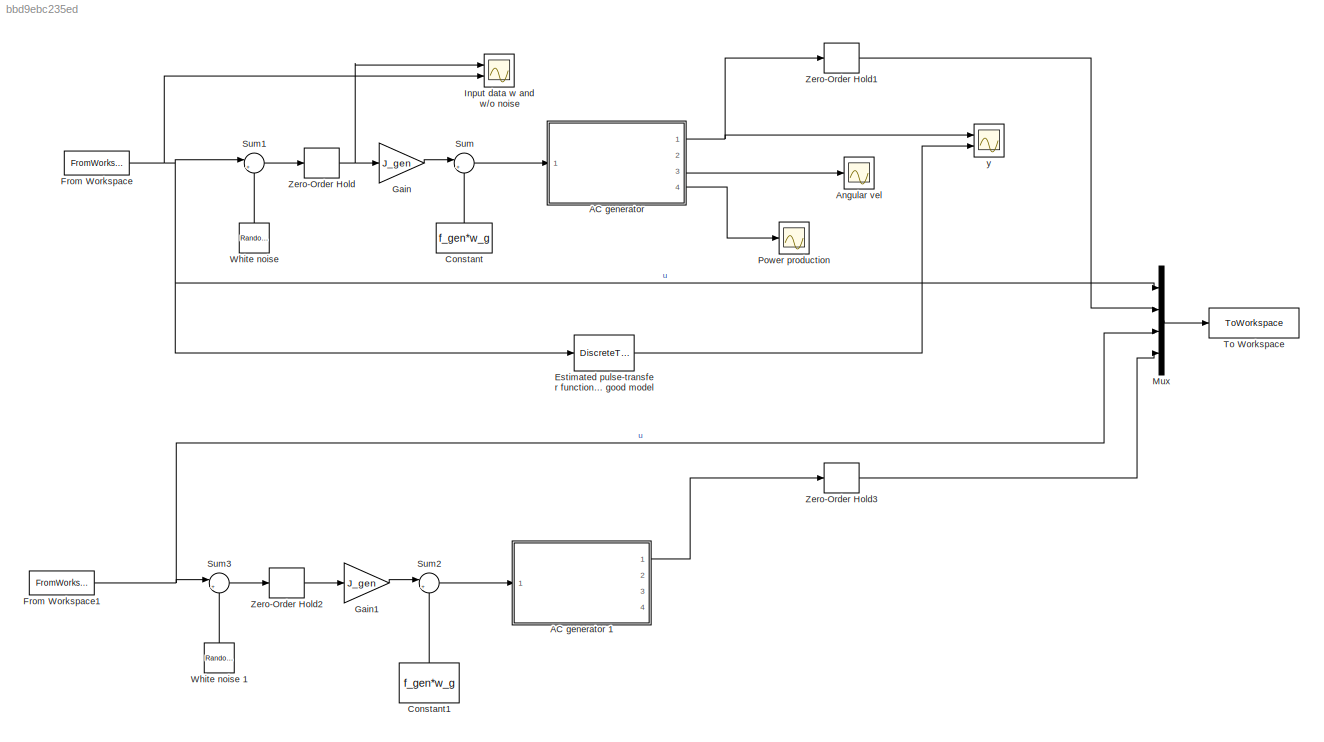
MODEL slx_bbd9ebc235ed
KIND model
CONFIG AbsTol = auto
CONFIG EnableMultiTasking = off
CONFIG FixedStep = auto
CONFIG MaxStep = 1e-3
CONFIG MinStep = auto
CONFIG RelTol = 1e-3
CONFIG SampleTimeConstraint = Unconstrained
CONFIG Solver = ode15s
CONFIG SolverName = ode15s
CONFIG StartTime = 0.0
CONFIG StopTime = 12
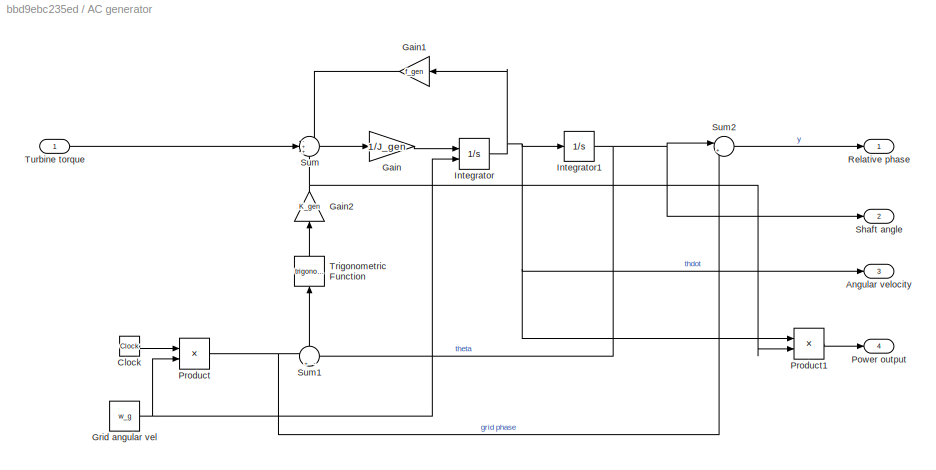
BLOCK [SubSystem] AC generator
  Ports = [1, 4]
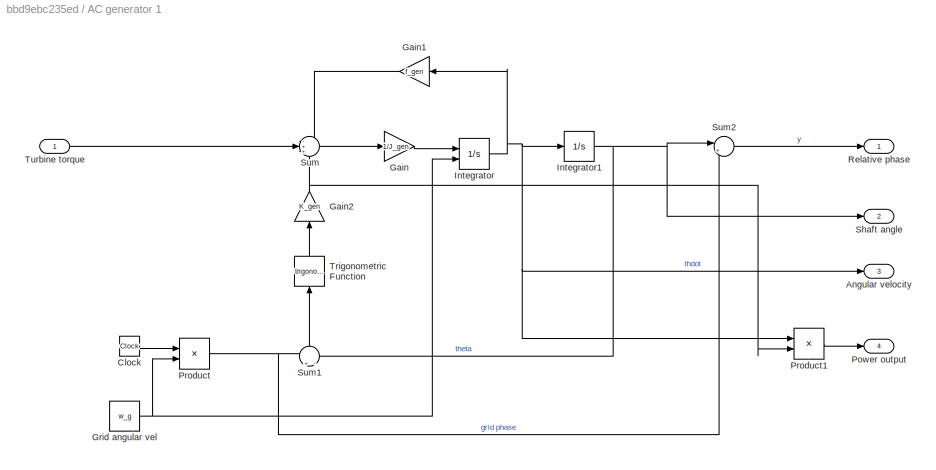
BLOCK [SubSystem] AC generator 1
  Ports = [1, 4]
BLOCK [Outport] AC generator 1/Angular velocity
  Port = 3
BLOCK [Clock] AC generator 1/Clock
BLOCK [Gain] AC generator 1/Gain
  Gain = 1/J_gen
BLOCK [Gain] AC generator 1/Gain1
  Gain = f_gen
BLOCK [Gain] AC generator 1/Gain2
  Gain = K_gen
BLOCK [Constant] AC generator 1/Grid angular vel
  Value = w_g
BLOCK [Integrator] AC generator 1/Integrator
  InitialConditionSource = external
  Ports = [2, 1]
BLOCK [Integrator] AC generator 1/Integrator1
  Ports = [1, 1]
BLOCK [Outport] AC generator 1/Power output
  Port = 4
BLOCK [Product] AC generator 1/Product
  Ports = [2, 1]
BLOCK [Product] AC generator 1/Product1
  Ports = [2, 1]
BLOCK [Outport] AC generator 1/Relative phase
BLOCK [Outport] AC generator 1/Shaft angle
  Port = 2
BLOCK [Sum] AC generator 1/Sum
  Inputs = -++
  Ports = [3, 1]
BLOCK [Sum] AC generator 1/Sum1
  Inputs = +|-
  Ports = [2, 1]
BLOCK [Sum] AC generator 1/Sum2
  Inputs = |+-
  Ports = [2, 1]
BLOCK [Trigonometry] AC generator 1/Trigonometric Function
  Ports = [1, 1]
BLOCK [Inport] AC generator 1/Turbine torque
BLOCK [Outport] AC generator/Angular velocity
  Port = 3
BLOCK [Clock] AC generator/Clock
BLOCK [Gain] AC generator/Gain
  Gain = 1/J_gen
BLOCK [Gain] AC generator/Gain1
  Gain = f_gen
BLOCK [Gain] AC generator/Gain2
  Gain = K_gen
BLOCK [Constant] AC generator/Grid angular vel
  Value = w_g
BLOCK [Integrator] AC generator/Integrator
  InitialConditionSource = external
  Ports = [2, 1]
BLOCK [Integrator] AC generator/Integrator1
  Ports = [1, 1]
BLOCK [Outport] AC generator/Power output
  Port = 4
BLOCK [Product] AC generator/Product
  Ports = [2, 1]
BLOCK [Product] AC generator/Product1
  Ports = [2, 1]
BLOCK [Outport] AC generator/Relative phase
BLOCK [Outport] AC generator/Shaft angle
  Port = 2
BLOCK [Sum] AC generator/Sum
  Inputs = -++
  Ports = [3, 1]
BLOCK [Sum] AC generator/Sum1
  Inputs = +|-
  Ports = [2, 1]
BLOCK [Sum] AC generator/Sum2
  Inputs = |+-
  Ports = [2, 1]
BLOCK [Trigonometry] AC generator/Trigonometric Function
  Ports = [1, 1]
BLOCK [Inport] AC generator/Turbine torque
BLOCK [Scope] Angular vel
  Floating = off
  NumInputPorts = 1
  Ports = [1]
  ScopeSpecificationString = Simulink.scopes.TimeScopeBlockCfg('CurrentConfiguration', extmgr.ConfigurationSet(extmgr.Configuration('Core','General UI',true),extmgr.Configuration('Core','Source UI',true),extmgr.Configuration('Sources','WiredSimulink',true,'DataLoggingVariableName','ScopeData1'),extmgr.Configuration('Visuals','Time Domain',true,'SerializedDisplays',{struct('MinYLimReal','224.79327','MaxYLimReal','605.82004','Y...<+1478ch>
BLOCK [Constant] Constant
  Value = f_gen*w_g
BLOCK [Constant] Constant1
  Value = f_gen*w_g
BLOCK [DiscreteTransferFcn] Estimated pulse-transfer function Uncomment when you have found a good model
  Commented = on
  Denominator = den{1}
  InputPortMap = u0
  Numerator = num{1}
  Ports = [1, 1]
  SampleTime = h
BLOCK [FromWorkspace] From Workspace
  SampleTime = h
  VariableName = input1
BLOCK [FromWorkspace] From Workspace1
  SampleTime = h
  VariableName = input1v
BLOCK [Gain] Gain
  Gain = J_gen
BLOCK [Gain] Gain1
  Gain = J_gen
BLOCK [Scope] Input data w and w//o noise
  Floating = off
  NumInputPorts = 2
  Ports = [2]
  ScopeSpecificationString = Simulink.scopes.TimeScopeBlockCfg('CurrentConfiguration', extmgr.ConfigurationSet(extmgr.Configuration('Core','General UI',true),extmgr.Configuration('Core','Source UI',true),extmgr.Configuration('Sources','WiredSimulink',true,'DataLoggingVariableName','ScopeData1'),extmgr.Configuration('Visuals','Time Domain',true,'SerializedDisplays',{struct('MinYLimReal','-3.08678','MaxYLimReal','3.41723','YLab...<+1472ch>
BLOCK [Mux] Mux
  DisplayOption = bar
  Ports = [4, 1]
BLOCK [Scope] Power production
  Floating = off
  NumInputPorts = 1
  Ports = [1]
  ScopeSpecificationString = Simulink.scopes.TimeScopeBlockCfg('CurrentConfiguration', extmgr.ConfigurationSet(extmgr.Configuration('Core','General UI',true),extmgr.Configuration('Core','Source UI',true),extmgr.Configuration('Sources','WiredSimulink',true,'DataLoggingVariableName','ScopeData2'),extmgr.Configuration('Visuals','Time Domain',true,'SerializedDisplays',{struct('MinYLimReal','-117411511.98523','MaxYLimReal','130457...<+1546ch>
BLOCK [Sum] Sum
  Inputs = |++
  Ports = [2, 1]
BLOCK [Sum] Sum1
  Inputs = |++
  Ports = [2, 1]
BLOCK [Sum] Sum2
  Inputs = |++
  Ports = [2, 1]
BLOCK [Sum] Sum3
  Inputs = |++
  Ports = [2, 1]
BLOCK [ToWorkspace] To Workspace
  FixptAsFi = on
  MaxDataPoints = inf
  Ports = [1]
  SampleTime = -1
  SaveFormat = Timeseries
  VariableName = simout
BLOCK [RandomNumber] White noise
  SampleTime = h
  Variance = 0.25
BLOCK [RandomNumber] White noise 1
  SampleTime = h
  Seed = 9
  Variance = 0.25
BLOCK [ZeroOrderHold] Zero-Order Hold
  SampleTime = h
BLOCK [ZeroOrderHold] Zero-Order Hold1
  SampleTime = h
BLOCK [ZeroOrderHold] Zero-Order Hold2
  SampleTime = h
BLOCK [ZeroOrderHold] Zero-Order Hold3
  SampleTime = h
BLOCK [Scope] y
  Floating = off
  NumInputPorts = 2
  Ports = [2]
  ScopeSpecificationString = Simulink.scopes.TimeScopeBlockCfg('CurrentConfiguration', extmgr.ConfigurationSet(extmgr.Configuration('Core','General UI',true),extmgr.Configuration('Core','Source UI',true),extmgr.Configuration('Sources','WiredSimulink',true),extmgr.Configuration('Visuals','Time Domain',true,'SerializedDisplays',{struct('MinYLimReal','-1.75886','MaxYLimReal','2.12803','YLabelReal','','MinYLimMag','0.00000','MaxY...<+1513ch>
LINE AC generator 1/Clock:1 -> AC generator 1/Product:1
LINE AC generator 1/Gain1:1 -> AC generator 1/Sum:1
NET AC generator 1/Gain2:1 -> AC generator 1/Product1:2, AC generator 1/Sum:3
LINE AC generator 1/Gain:1 -> AC generator 1/Integrator:1
NET AC generator 1/Grid angular vel:1 -> AC generator 1/Integrator:2, AC generator 1/Product:2
NET AC generator 1/Integrator1:1 -> AC generator 1/Shaft angle:1, AC generator 1/Sum1:2, AC generator 1/Sum2:1
NET AC generator 1/Integrator:1 -> AC generator 1/Angular velocity:1, AC generator 1/Gain1:1, AC generator 1/Integrator1:1, AC generator 1/Product1:1
LINE AC generator 1/Product1:1 -> AC generator 1/Power output:1
NET AC generator 1/Product:1 -> AC generator 1/Sum1:1, AC generator 1/Sum2:2
LINE AC generator 1/Sum1:1 -> AC generator 1/Trigonometric Function:1
LINE AC generator 1/Sum2:1 -> AC generator 1/Relative phase:1
LINE AC generator 1/Sum:1 -> AC generator 1/Gain:1
LINE AC generator 1/Trigonometric Function:1 -> AC generator 1/Gain2:1
LINE AC generator 1/Turbine torque:1 -> AC generator 1/Sum:2
LINE AC generator 1:1 -> Zero-Order Hold3:1
LINE AC generator/Clock:1 -> AC generator/Product:1
LINE AC generator/Gain1:1 -> AC generator/Sum:1
NET AC generator/Gain2:1 -> AC generator/Product1:2, AC generator/Sum:3
LINE AC generator/Gain:1 -> AC generator/Integrator:1
NET AC generator/Grid angular vel:1 -> AC generator/Integrator:2, AC generator/Product:2
NET AC generator/Integrator1:1 -> AC generator/Shaft angle:1, AC generator/Sum1:2, AC generator/Sum2:1
NET AC generator/Integrator:1 -> AC generator/Angular velocity:1, AC generator/Gain1:1, AC generator/Integrator1:1, AC generator/Product1:1
LINE AC generator/Product1:1 -> AC generator/Power output:1
NET AC generator/Product:1 -> AC generator/Sum1:1, AC generator/Sum2:2
LINE AC generator/Sum1:1 -> AC generator/Trigonometric Function:1
LINE AC generator/Sum2:1 -> AC generator/Relative phase:1
LINE AC generator/Sum:1 -> AC generator/Gain:1
LINE AC generator/Trigonometric Function:1 -> AC generator/Gain2:1
LINE AC generator/Turbine torque:1 -> AC generator/Sum:2
NET AC generator:1 -> Zero-Order Hold1:1, y:1
LINE AC generator:3 -> Angular vel:1
LINE AC generator:4 -> Power production:1
LINE Constant1:1 -> Sum2:2
LINE Constant:1 -> Sum:2
LINE Estimated pulse-transfer function Uncomment when you have found a good model:1 -> y:2
NET From Workspace1:1 -> Mux:3, Sum3:1
NET From Workspace:1 -> Estimated pulse-transfer function Uncomment when you have found a good model:1, Input data w and w//o noise:2, Mux:1, Sum1:1
LINE Gain1:1 -> Sum2:1
LINE Gain:1 -> Sum:1
LINE Mux:1 -> To Workspace:1
LINE Sum1:1 -> Zero-Order Hold:1
LINE Sum2:1 -> AC generator 1:1
LINE Sum3:1 -> Zero-Order Hold2:1
LINE Sum:1 -> AC generator:1
LINE White noise 1:1 -> Sum3:2
LINE White noise:1 -> Sum1:2
LINE Zero-Order Hold1:1 -> Mux:2
LINE Zero-Order Hold2:1 -> Gain1:1
LINE Zero-Order Hold3:1 -> Mux:4
NET Zero-Order Hold:1 -> Gain:1, Input data w and w//o noise:1
note: NET lines group one-source signal fan-out (src -> all destinations, sorted); 1:1 wires keep LINE
